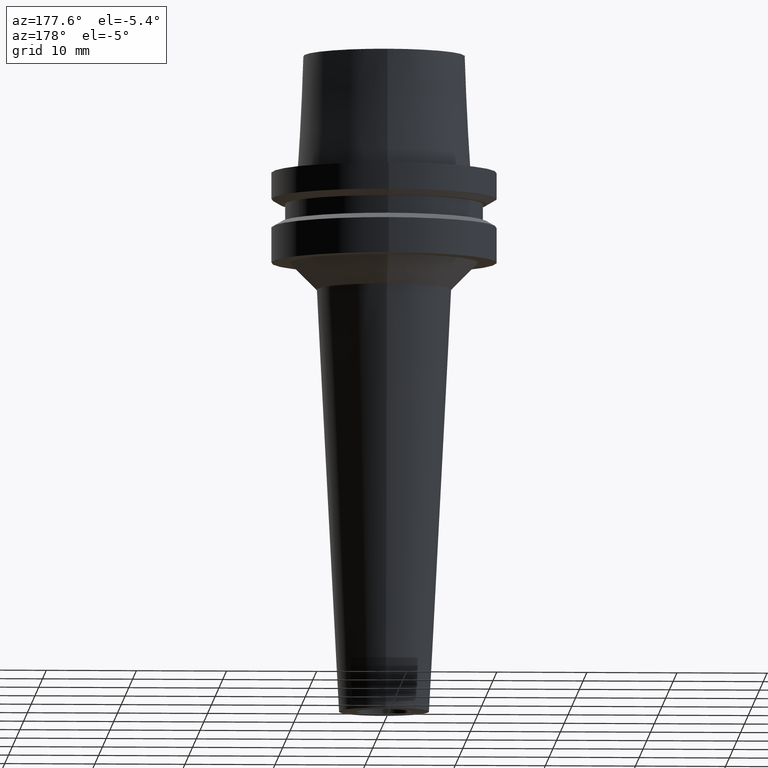
[diagram: clean part render]
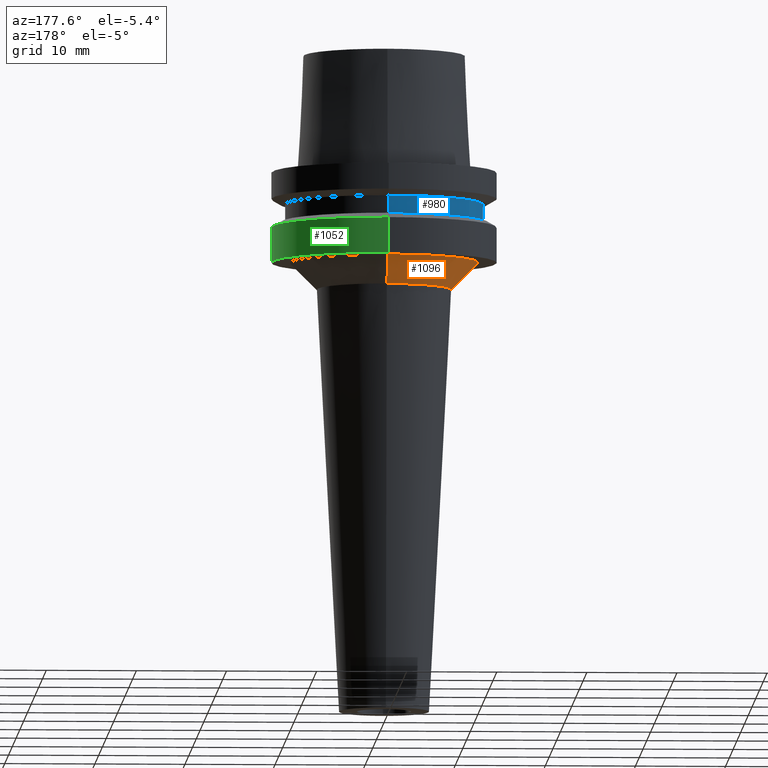
[diagram: same view with three faces highlighted in distinct colors, each labeled with its STEP entity id]
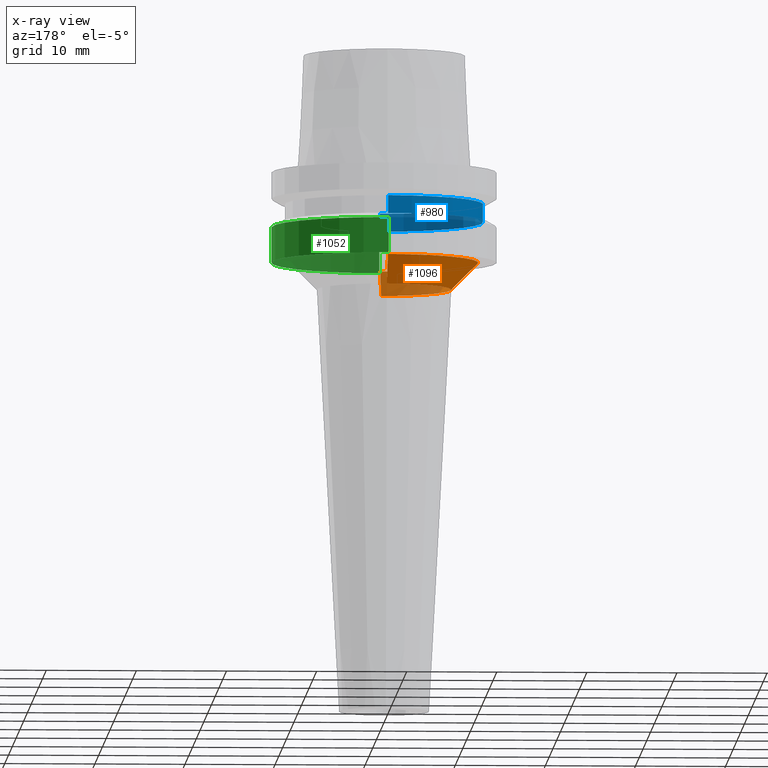
[diagram: x-ray of the same camera — body ghosted, the three highlighted faces saturated]
A machine part, auxiliary view with three faces highlighted in distinct colors.
The next image is the same camera in x-ray (body ghosted, the three faces saturated) — at least one of them is partly hidden behind the body in this view.
Their STEP definitions:

[orange] entity #1096 — the highlighted conical surface has half-angle 45 deg.
#278=CARTESIAN_POINT('',(0.E0,1.083812417245E-14,-1.E1));
#279=DIRECTION('',(0.E0,0.E0,-1.E0));
#280=DIRECTION('',(0.E0,-1.E0,0.E0));
#281=AXIS2_PLACEMENT_3D('',#278,#279,#280);
#294=DIRECTION('',(0.E0,7.071067811865E-1,-7.071067811866E-1));
#295=VECTOR('',#294,4.242640687117E0);
#296=CARTESIAN_POINT('',(0.E0,-1.046316562630E1,-1.E1));
#297=LINE('',#296,#295);
#301=CARTESIAN_POINT('',(0.E0,1.083812417245E-14,-1.3E1));
#302=DIRECTION('',(0.E0,0.E0,-1.E0));
#303=DIRECTION('',(0.E0,-1.E0,0.E0));
#304=AXIS2_PLACEMENT_3D('',#301,#302,#303);
#309=DIRECTION('',(0.E0,-7.071067811865E-1,-7.071067811866E-1));
#310=VECTOR('',#309,4.242640687117E0);
#311=CARTESIAN_POINT('',(0.E0,1.046316562630E1,-1.E1));
#312=LINE('',#311,#310);
#788=CARTESIAN_POINT('',(0.E0,7.463165626303E0,-1.3E1));
#789=VERTEX_POINT('',#788);
#790=CARTESIAN_POINT('',(0.E0,-7.463165626303E0,-1.3E1));
#791=VERTEX_POINT('',#790);
#792=CARTESIAN_POINT('',(0.E0,1.046316562630E1,-1.E1));
#793=VERTEX_POINT('',#792);
#794=CARTESIAN_POINT('',(0.E0,-1.046316562630E1,-1.E1));
#795=VERTEX_POINT('',#794);
#1082=CARTESIAN_POINT('',(0.E0,1.083812417245E-14,-1.15E1));
#1083=DIRECTION('',(0.E0,0.E0,1.E0));
#1084=DIRECTION('',(0.E0,1.E0,0.E0));
#1085=AXIS2_PLACEMENT_3D('',#1082,#1083,#1084);
#1086=CONICAL_SURFACE('',#1085,8.963165626302E0,4.5E1);
#1088=ORIENTED_EDGE('',*,*,#1087,.F.);
#1089=ORIENTED_EDGE('',*,*,#1075,.F.);
#1091=ORIENTED_EDGE('',*,*,#1090,.T.);
#1093=ORIENTED_EDGE('',*,*,#1092,.T.);
#1094=EDGE_LOOP('',(#1088,#1089,#1091,#1093));
#1095=FACE_OUTER_BOUND('',#1094,.F.);
#282=CIRCLE('',#281,1.046316562630E1);
#305=CIRCLE('',#304,7.463165626303E0);
#1075=EDGE_CURVE('',#795,#793,#282,.T.);
#1087=EDGE_CURVE('',#793,#789,#312,.T.);
#1090=EDGE_CURVE('',#795,#791,#297,.T.);
#1092=EDGE_CURVE('',#791,#789,#305,.T.);
#1096=ADVANCED_FACE('',(#1095),#1086,.T.);

[blue] entity #980 — the highlighted cylindrical surface (partial cylindrical patch) has radius 11 mm, axis along (0, 0, -1).
#156=CARTESIAN_POINT('',(0.E0,1.428550491205E-14,-3.5E0));
#157=DIRECTION('',(0.E0,0.E0,-1.E0));
#158=DIRECTION('',(0.E0,-1.E0,0.E0));
#159=AXIS2_PLACEMENT_3D('',#156,#157,#158);
#172=DIRECTION('',(0.E0,0.E0,-1.E0));
#173=VECTOR('',#172,2.E0);
#174=CARTESIAN_POINT('',(0.E0,-1.1E1,-3.5E0));
#175=LINE('',#174,#173);
#179=DIRECTION('',(0.E0,0.E0,-1.E0));
#180=VECTOR('',#179,2.E0);
#181=CARTESIAN_POINT('',(0.E0,1.1E1,-3.5E0));
#182=LINE('',#181,#180);
#210=CARTESIAN_POINT('',(0.E0,1.428550491205E-14,-5.5E0));
#211=DIRECTION('',(0.E0,0.E0,1.E0));
#212=DIRECTION('',(0.E0,1.E0,0.E0));
#213=AXIS2_PLACEMENT_3D('',#210,#211,#212);
#808=CARTESIAN_POINT('',(0.E0,-1.1E1,-5.5E0));
#809=CARTESIAN_POINT('',(0.E0,1.1E1,-5.5E0));
#810=VERTEX_POINT('',#808);
#811=VERTEX_POINT('',#809);
#812=CARTESIAN_POINT('',(0.E0,1.1E1,-3.5E0));
#813=VERTEX_POINT('',#812);
#814=CARTESIAN_POINT('',(0.E0,-1.1E1,-3.5E0));
#815=VERTEX_POINT('',#814);
#966=CARTESIAN_POINT('',(0.E0,1.428550491205E-14,1.665E1));
#967=DIRECTION('',(0.E0,0.E0,-1.E0));
#968=DIRECTION('',(0.E0,-1.E0,0.E0));
#969=AXIS2_PLACEMENT_3D('',#966,#967,#968);
#970=CYLINDRICAL_SURFACE('',#969,1.1E1);
#972=ORIENTED_EDGE('',*,*,#971,.F.);
#973=ORIENTED_EDGE('',*,*,#959,.F.);
#975=ORIENTED_EDGE('',*,*,#974,.T.);
#977=ORIENTED_EDGE('',*,*,#976,.F.);
#978=EDGE_LOOP('',(#972,#973,#975,#977));
#979=FACE_OUTER_BOUND('',#978,.F.);
#160=CIRCLE('',#159,1.1E1);
#214=CIRCLE('',#213,1.1E1);
#959=EDGE_CURVE('',#815,#813,#160,.T.);
#971=EDGE_CURVE('',#813,#811,#182,.T.);
#974=EDGE_CURVE('',#815,#810,#175,.T.);
#976=EDGE_CURVE('',#811,#810,#214,.T.);
#980=ADVANCED_FACE('',(#979),#970,.T.);

[green] entity #1052 — the highlighted cylindrical surface (partial cylindrical patch) has radius 12.5 mm, axis along (0, 0, -1).
#240=CARTESIAN_POINT('',(0.E0,1.153692519502E-14,-6.087713240273E0));
#241=DIRECTION('',(0.E0,0.E0,-1.E0));
#242=DIRECTION('',(0.E0,1.E0,0.E0));
#243=AXIS2_PLACEMENT_3D('',#240,#241,#242);
#248=DIRECTION('',(0.E0,1.834344482375E-13,-1.E0));
#249=VECTOR('',#248,3.912286759728E0);
#250=CARTESIAN_POINT('',(0.E0,1.25E1,-6.087713240272E0));
#251=LINE('',#250,#249);
#255=DIRECTION('',(0.E0,-1.816182655817E-13,-1.E0));
#256=VECTOR('',#255,3.912286759728E0);
#257=CARTESIAN_POINT('',(0.E0,-1.25E1,-6.087713240272E0));
#258=LINE('',#257,#256);
#262=CARTESIAN_POINT('',(0.E0,1.428550491205E-14,-1.E1));
#263=DIRECTION('',(0.E0,0.E0,1.E0));
#264=DIRECTION('',(0.E0,-1.E0,0.E0));
#265=AXIS2_PLACEMENT_3D('',#262,#263,#264);
#796=CARTESIAN_POINT('',(0.E0,-1.25E1,-1.E1));
#797=CARTESIAN_POINT('',(0.E0,1.25E1,-1.E1));
#798=VERTEX_POINT('',#796);
#799=VERTEX_POINT('',#797);
#800=CARTESIAN_POINT('',(0.E0,1.25E1,-6.087713240272E0));
#801=VERTEX_POINT('',#800);
#802=CARTESIAN_POINT('',(0.E0,-1.25E1,-6.087713240272E0));
#803=VERTEX_POINT('',#802);
#1038=CARTESIAN_POINT('',(0.E0,1.428550491205E-14,1.665E1));
#1039=DIRECTION('',(0.E0,0.E0,-1.E0));
#1040=DIRECTION('',(0.E0,-1.E0,0.E0));
#1041=AXIS2_PLACEMENT_3D('',#1038,#1039,#1040);
#1042=CYLINDRICAL_SURFACE('',#1041,1.25E1);
#1044=ORIENTED_EDGE('',*,*,#1043,.T.);
#1046=ORIENTED_EDGE('',*,*,#1045,.F.);
#1048=ORIENTED_EDGE('',*,*,#1047,.F.);
#1049=ORIENTED_EDGE('',*,*,#1031,.F.);
#1050=EDGE_LOOP('',(#1044,#1046,#1048,#1049));
#1051=FACE_OUTER_BOUND('',#1050,.F.);
#244=CIRCLE('',#243,1.25E1);
#266=CIRCLE('',#265,1.25E1);
#1031=EDGE_CURVE('',#801,#803,#244,.T.);
#1043=EDGE_CURVE('',#801,#799,#251,.T.);
#1045=EDGE_CURVE('',#798,#799,#266,.T.);
#1047=EDGE_CURVE('',#803,#798,#258,.T.);
#1052=ADVANCED_FACE('',(#1051),#1042,.T.);